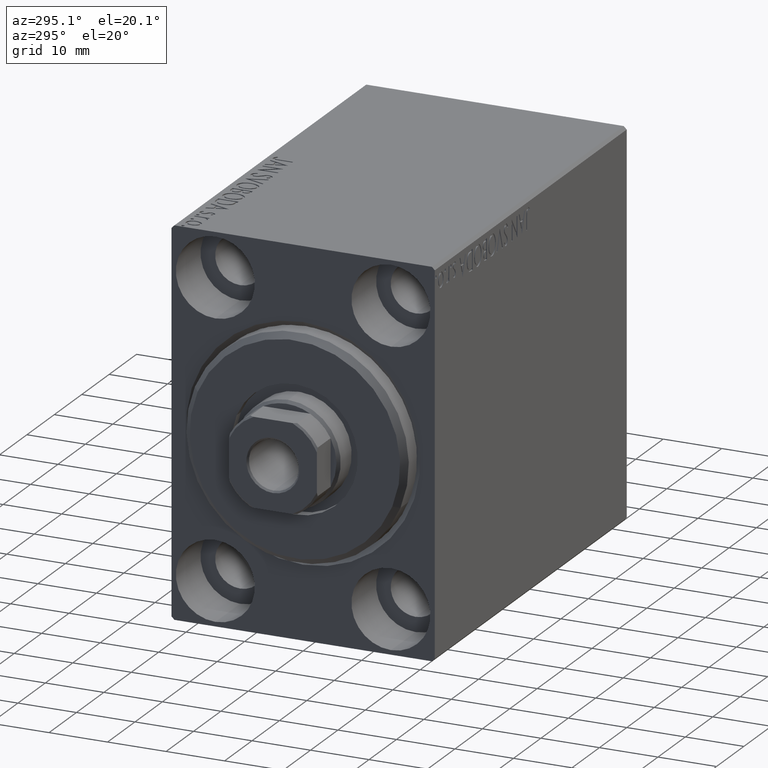
[diagram: clean part render]
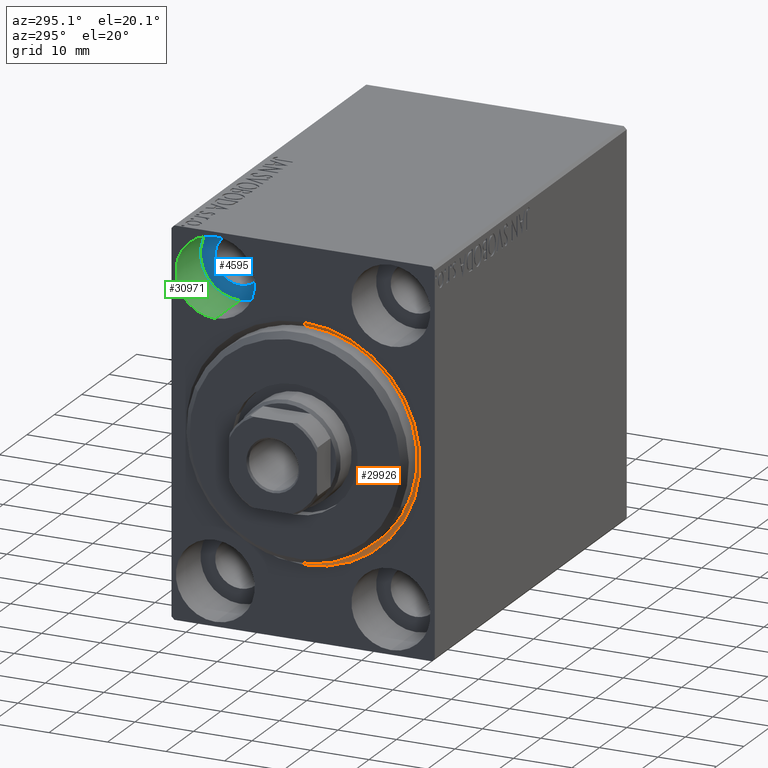
[diagram: same view with three faces highlighted in distinct colors, each labeled with its STEP entity id]
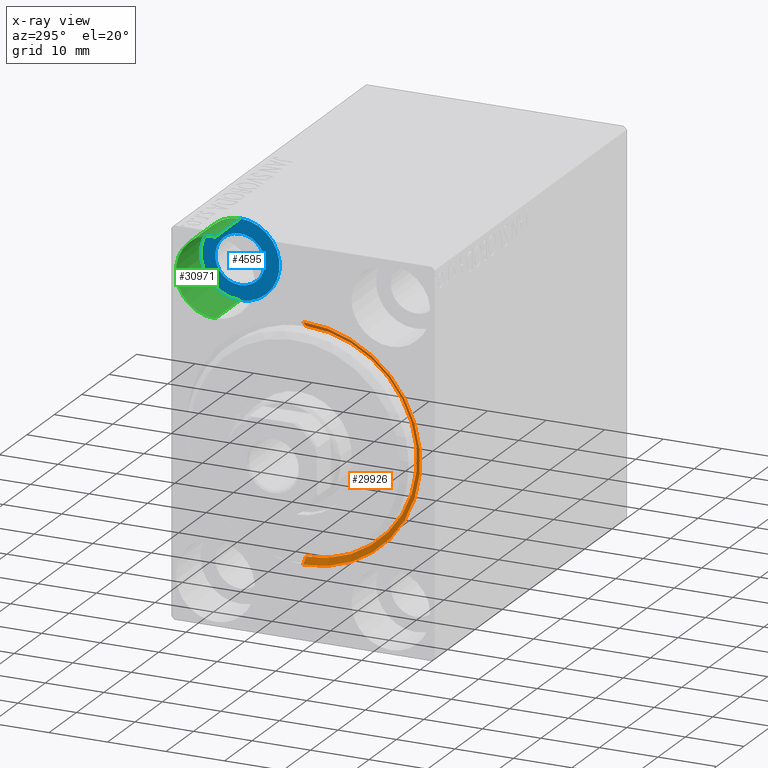
[diagram: x-ray of the same camera — body ghosted, the three highlighted faces saturated]
A machine part, auxiliary view with three faces highlighted in distinct colors.
The next image is the same camera in x-ray (body ghosted, the three faces saturated) — at least one of them is partly hidden behind the body in this view.
Their STEP definitions:

[orange] entity #29926 — the highlighted conical surface has half-angle 45 deg.
#4980 = DIRECTION ( 'NONE',  ( -0.7071067811865463515, 0.000000000000000000, 0.7071067811865487940 ) ) ;
#5086 = AXIS2_PLACEMENT_3D ( 'NONE', #8893, #12654, #9111 ) ;
#5667 = CARTESIAN_POINT ( 'NONE',  ( 1.000000000000000888, 2.326828918379970970E-15, -19.00000000000000000 ) ) ;
#7937 = CARTESIAN_POINT ( 'NONE',  ( 1.000000000000000888, 0.000000000000000000, 0.000000000000000000 ) ) ;
#8172 = EDGE_CURVE ( 'NONE', #9754, #39426, #16803, .T. ) ;
#8607 = CARTESIAN_POINT ( 'NONE',  ( 1.000000000000000888, 0.000000000000000000, 19.00000000000000000 ) ) ;
#8893 = CARTESIAN_POINT ( 'NONE',  ( 0.000000000000000000, 0.000000000000000000, 0.000000000000000000 ) ) ;
#9111 = DIRECTION ( 'NONE',  ( 0.000000000000000000, 0.000000000000000000, -1.000000000000000000 ) ) ;
#9754 = VERTEX_POINT ( 'NONE', #5667 ) ;
#10013 = VECTOR ( 'NONE', #4980, 1000.000000000000000 ) ;
#10206 = ORIENTED_EDGE ( 'NONE', *, *, #8172, .T. ) ;
#11624 = LINE ( 'NONE', #38657, #10013 ) ;
#12417 = DIRECTION ( 'NONE',  ( -0.7071067811865463515, 8.659560562354948882E-17, -0.7071067811865487940 ) ) ;
#12654 = DIRECTION ( 'NONE',  ( 1.000000000000000000, 0.000000000000000000, 0.000000000000000000 ) ) ;
#12881 = VECTOR ( 'NONE', #12417, 1000.000000000000000 ) ;
#13562 = EDGE_CURVE ( 'NONE', #40331, #39426, #17117, .T. ) ;
#16803 = LINE ( 'NONE', #42761, #12881 ) ;
#17117 = CIRCLE ( 'NONE', #5086, 20.00000000000000355 ) ;
#18766 = EDGE_LOOP ( 'NONE', ( #19864, #10206, #37526, #31009 ) ) ;
#19864 = ORIENTED_EDGE ( 'NONE', *, *, #26687, .F. ) ;
#21855 = DIRECTION ( 'NONE',  ( -1.000000000000000000, 0.000000000000000000, 0.000000000000000000 ) ) ;
#22041 = DIRECTION ( 'NONE',  ( -1.000000000000000000, 0.000000000000000000, 0.000000000000000000 ) ) ;
#22503 = CONICAL_SURFACE ( 'NONE', #41604, 19.00000000000000000, 0.7853981633974500554 ) ;
#26687 = EDGE_CURVE ( 'NONE', #9754, #41535, #33046, .T. ) ;
#28955 = CARTESIAN_POINT ( 'NONE',  ( 1.000000000000000888, 0.000000000000000000, 0.000000000000000000 ) ) ;
#29722 = CARTESIAN_POINT ( 'NONE',  ( 0.000000000000000000, 0.000000000000000000, 20.00000000000000355 ) ) ;
#29926 = ADVANCED_FACE ( 'NONE', ( #32241 ), #22503, .F. ) ;
#31009 = ORIENTED_EDGE ( 'NONE', *, *, #40077, .F. ) ;
#32241 = FACE_OUTER_BOUND ( 'NONE', #18766, .T. ) ;
#33046 = CIRCLE ( 'NONE', #41512, 19.00000000000000000 ) ;
#35610 = DIRECTION ( 'NONE',  ( 0.000000000000000000, 0.000000000000000000, -1.000000000000000000 ) ) ;
#35933 = CARTESIAN_POINT ( 'NONE',  ( 0.000000000000000000, 2.449293598294706907E-15, -20.00000000000000355 ) ) ;
#37526 = ORIENTED_EDGE ( 'NONE', *, *, #13562, .F. ) ;
#37847 = DIRECTION ( 'NONE',  ( 0.000000000000000000, 0.000000000000000000, 1.000000000000000000 ) ) ;
#38657 = CARTESIAN_POINT ( 'NONE',  ( 1.000000000000000888, 0.000000000000000000, 19.00000000000000000 ) ) ;
#39426 = VERTEX_POINT ( 'NONE', #35933 ) ;
#40077 = EDGE_CURVE ( 'NONE', #41535, #40331, #11624, .T. ) ;
#40331 = VERTEX_POINT ( 'NONE', #29722 ) ;
#41512 = AXIS2_PLACEMENT_3D ( 'NONE', #28955, #21855, #35610 ) ;
#41535 = VERTEX_POINT ( 'NONE', #8607 ) ;
#41604 = AXIS2_PLACEMENT_3D ( 'NONE', #7937, #22041, #37847 ) ;
#42761 = CARTESIAN_POINT ( 'NONE',  ( 1.000000000000000888, 2.326828918379970970E-15, -19.00000000000000000 ) ) ;

[blue] entity #4595 — the highlighted planar face has unit normal (-1, 0, 0).
#509 = ORIENTED_EDGE ( 'NONE', *, *, #26645, .T. ) ;
#1647 = CARTESIAN_POINT ( 'NONE',  ( 9.000000000000001776, 15.00000000000000355, 25.00000000000000000 ) ) ;
#1925 = AXIS2_PLACEMENT_3D ( 'NONE', #12364, #22757, #5933 ) ;
#4595 = ADVANCED_FACE ( 'NONE', ( #28736, #42257 ), #25407, .T. ) ;
#5933 = DIRECTION ( 'NONE',  ( 0.000000000000000000, 0.000000000000000000, 1.000000000000000000 ) ) ;
#6157 = CIRCLE ( 'NONE', #11821, 6.749999999999999112 ) ;
#7785 = CARTESIAN_POINT ( 'NONE',  ( 9.000000000000000000, 15.00000000000000355, 25.00000000000000000 ) ) ;
#10700 = ORIENTED_EDGE ( 'NONE', *, *, #24657, .F. ) ;
#11821 = AXIS2_PLACEMENT_3D ( 'NONE', #18768, #32507, #42251 ) ;
#12364 = CARTESIAN_POINT ( 'NONE',  ( 9.000000000000001776, 15.00000000000000355, 25.00000000000000000 ) ) ;
#13525 = EDGE_CURVE ( 'NONE', #15093, #20870, #13577, .T. ) ;
#13577 = CIRCLE ( 'NONE', #14990, 6.749999999999999112 ) ;
#13759 = CARTESIAN_POINT ( 'NONE',  ( 9.000000000000001776, 15.00000000000000355, 20.75000000000000355 ) ) ;
#14260 = EDGE_LOOP ( 'NONE', ( #10700, #17928 ) ) ;
#14990 = AXIS2_PLACEMENT_3D ( 'NONE', #7785, #21284, #34807 ) ;
#15093 = VERTEX_POINT ( 'NONE', #20628 ) ;
#16534 = CARTESIAN_POINT ( 'NONE',  ( 9.000000000000000000, 0.000000000000000000, 0.000000000000000000 ) ) ;
#17928 = ORIENTED_EDGE ( 'NONE', *, *, #27399, .F. ) ;
#18190 = CIRCLE ( 'NONE', #1925, 4.249999999999996447 ) ;
#18768 = CARTESIAN_POINT ( 'NONE',  ( 9.000000000000000000, 15.00000000000000355, 25.00000000000000000 ) ) ;
#20628 = CARTESIAN_POINT ( 'NONE',  ( 9.000000000000000000, 15.00000000000000355, 31.75000000000000000 ) ) ;
#20870 = VERTEX_POINT ( 'NONE', #22717 ) ;
#21284 = DIRECTION ( 'NONE',  ( -1.000000000000000000, 0.000000000000000000, 0.000000000000000000 ) ) ;
#22717 = CARTESIAN_POINT ( 'NONE',  ( 9.000000000000000000, 15.00000000000000355, 18.25000000000000355 ) ) ;
#22757 = DIRECTION ( 'NONE',  ( -1.000000000000000000, 0.000000000000000000, 0.000000000000000000 ) ) ;
#23107 = EDGE_LOOP ( 'NONE', ( #33592, #509 ) ) ;
#24657 = EDGE_CURVE ( 'NONE', #31410, #30376, #30250, .T. ) ;
#25407 = PLANE ( 'NONE',  #40338 ) ;
#26645 = EDGE_CURVE ( 'NONE', #20870, #15093, #6157, .T. ) ;
#27399 = EDGE_CURVE ( 'NONE', #30376, #31410, #18190, .T. ) ;
#28736 = FACE_BOUND ( 'NONE', #14260, .T. ) ;
#30250 = CIRCLE ( 'NONE', #33109, 4.249999999999996447 ) ;
#30376 = VERTEX_POINT ( 'NONE', #13759 ) ;
#31410 = VERTEX_POINT ( 'NONE', #42069 ) ;
#32507 = DIRECTION ( 'NONE',  ( -1.000000000000000000, 0.000000000000000000, 0.000000000000000000 ) ) ;
#32876 = DIRECTION ( 'NONE',  ( 0.000000000000000000, 0.000000000000000000, 1.000000000000000000 ) ) ;
#33109 = AXIS2_PLACEMENT_3D ( 'NONE', #1647, #38867, #32876 ) ;
#33592 = ORIENTED_EDGE ( 'NONE', *, *, #13525, .T. ) ;
#34807 = DIRECTION ( 'NONE',  ( 0.000000000000000000, 0.000000000000000000, 1.000000000000000000 ) ) ;
#36489 = DIRECTION ( 'NONE',  ( -1.000000000000000000, 0.000000000000000000, 0.000000000000000000 ) ) ;
#36697 = DIRECTION ( 'NONE',  ( 0.000000000000000000, 0.000000000000000000, 1.000000000000000000 ) ) ;
#38867 = DIRECTION ( 'NONE',  ( -1.000000000000000000, 0.000000000000000000, 0.000000000000000000 ) ) ;
#40338 = AXIS2_PLACEMENT_3D ( 'NONE', #16534, #36489, #36697 ) ;
#42069 = CARTESIAN_POINT ( 'NONE',  ( 9.000000000000001776, 15.00000000000000355, 29.25000000000000000 ) ) ;
#42251 = DIRECTION ( 'NONE',  ( 0.000000000000000000, 0.000000000000000000, 1.000000000000000000 ) ) ;
#42257 = FACE_OUTER_BOUND ( 'NONE', #23107, .T. ) ;

[green] entity #30971 — the highlighted cylindrical surface (partial cylindrical patch) has radius 6.75 mm, axis along (-1, -0, -0).
#1280 = VERTEX_POINT ( 'NONE', #42555 ) ;
#1720 = CARTESIAN_POINT ( 'NONE',  ( 9.000000000000000000, 15.00000000000000355, 18.25000000000000355 ) ) ;
#3816 = DIRECTION ( 'NONE',  ( -1.000000000000000000, -0.000000000000000000, -0.000000000000000000 ) ) ;
#4502 = DIRECTION ( 'NONE',  ( -1.000000000000000000, 0.000000000000000000, 0.000000000000000000 ) ) ;
#5026 = AXIS2_PLACEMENT_3D ( 'NONE', #14689, #4502, #24212 ) ;
#7452 = VECTOR ( 'NONE', #11684, 1000.000000000000000 ) ;
#7494 = EDGE_CURVE ( 'NONE', #1280, #11198, #7863, .T. ) ;
#7785 = CARTESIAN_POINT ( 'NONE',  ( 9.000000000000000000, 15.00000000000000355, 25.00000000000000000 ) ) ;
#7863 = CIRCLE ( 'NONE', #5026, 6.749999999999999112 ) ;
#7946 = EDGE_LOOP ( 'NONE', ( #8276, #35334, #14183, #30276 ) ) ;
#8276 = ORIENTED_EDGE ( 'NONE', *, *, #18795, .F. ) ;
#8368 = LINE ( 'NONE', #1720, #7452 ) ;
#11198 = VERTEX_POINT ( 'NONE', #15542 ) ;
#11684 = DIRECTION ( 'NONE',  ( -1.000000000000000000, -0.000000000000000000, -0.000000000000000000 ) ) ;
#13525 = EDGE_CURVE ( 'NONE', #15093, #20870, #13577, .T. ) ;
#13577 = CIRCLE ( 'NONE', #14990, 6.749999999999999112 ) ;
#14183 = ORIENTED_EDGE ( 'NONE', *, *, #28790, .T. ) ;
#14689 = CARTESIAN_POINT ( 'NONE',  ( 0.000000000000000000, 15.00000000000000355, 25.00000000000000000 ) ) ;
#14990 = AXIS2_PLACEMENT_3D ( 'NONE', #7785, #21284, #34807 ) ;
#15093 = VERTEX_POINT ( 'NONE', #20628 ) ;
#15542 = CARTESIAN_POINT ( 'NONE',  ( 0.000000000000000000, 15.00000000000000355, 18.25000000000000355 ) ) ;
#18795 = EDGE_CURVE ( 'NONE', #20870, #11198, #8368, .T. ) ;
#20628 = CARTESIAN_POINT ( 'NONE',  ( 9.000000000000000000, 15.00000000000000355, 31.75000000000000000 ) ) ;
#20638 = CARTESIAN_POINT ( 'NONE',  ( 9.000000000000000000, 15.00000000000000355, 25.00000000000000000 ) ) ;
#20870 = VERTEX_POINT ( 'NONE', #22717 ) ;
#21284 = DIRECTION ( 'NONE',  ( -1.000000000000000000, 0.000000000000000000, 0.000000000000000000 ) ) ;
#22090 = LINE ( 'NONE', #24743, #35204 ) ;
#22717 = CARTESIAN_POINT ( 'NONE',  ( 9.000000000000000000, 15.00000000000000355, 18.25000000000000355 ) ) ;
#23956 = DIRECTION ( 'NONE',  ( 0.000000000000000000, 0.000000000000000000, 1.000000000000000000 ) ) ;
#24212 = DIRECTION ( 'NONE',  ( 0.000000000000000000, 0.000000000000000000, 1.000000000000000000 ) ) ;
#24743 = CARTESIAN_POINT ( 'NONE',  ( 9.000000000000000000, 15.00000000000000355, 31.75000000000000000 ) ) ;
#27274 = CYLINDRICAL_SURFACE ( 'NONE', #38797, 6.749999999999999112 ) ;
#28790 = EDGE_CURVE ( 'NONE', #15093, #1280, #22090, .T. ) ;
#30276 = ORIENTED_EDGE ( 'NONE', *, *, #7494, .T. ) ;
#30971 = ADVANCED_FACE ( 'NONE', ( #37049 ), #27274, .F. ) ;
#34807 = DIRECTION ( 'NONE',  ( 0.000000000000000000, 0.000000000000000000, 1.000000000000000000 ) ) ;
#35204 = VECTOR ( 'NONE', #38502, 1000.000000000000000 ) ;
#35334 = ORIENTED_EDGE ( 'NONE', *, *, #13525, .F. ) ;
#37049 = FACE_OUTER_BOUND ( 'NONE', #7946, .T. ) ;
#38502 = DIRECTION ( 'NONE',  ( -1.000000000000000000, -0.000000000000000000, -0.000000000000000000 ) ) ;
#38797 = AXIS2_PLACEMENT_3D ( 'NONE', #20638, #3816, #23956 ) ;
#42555 = CARTESIAN_POINT ( 'NONE',  ( 0.000000000000000000, 15.00000000000000355, 31.75000000000000000 ) ) ;